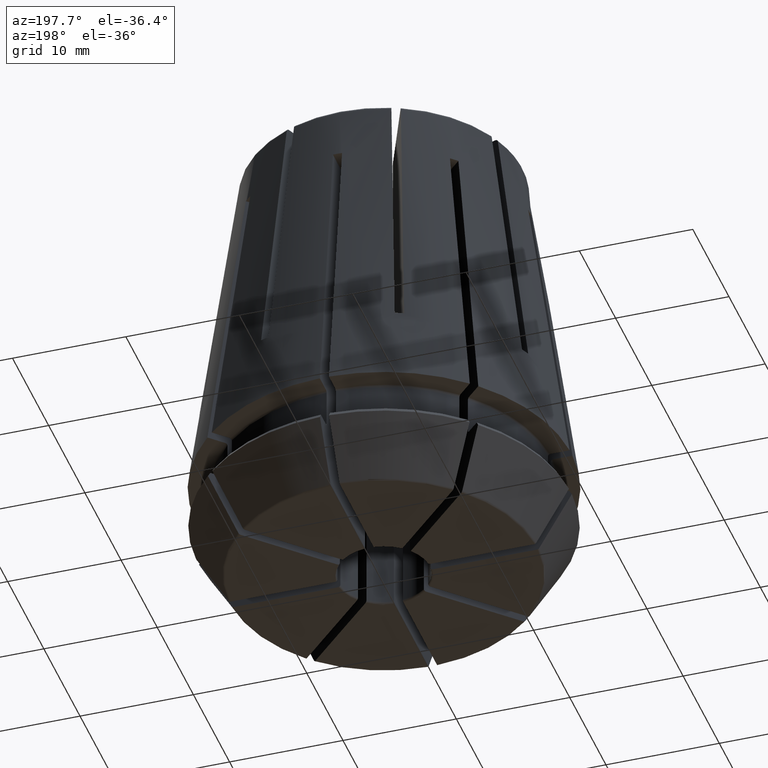
[diagram: clean part render]
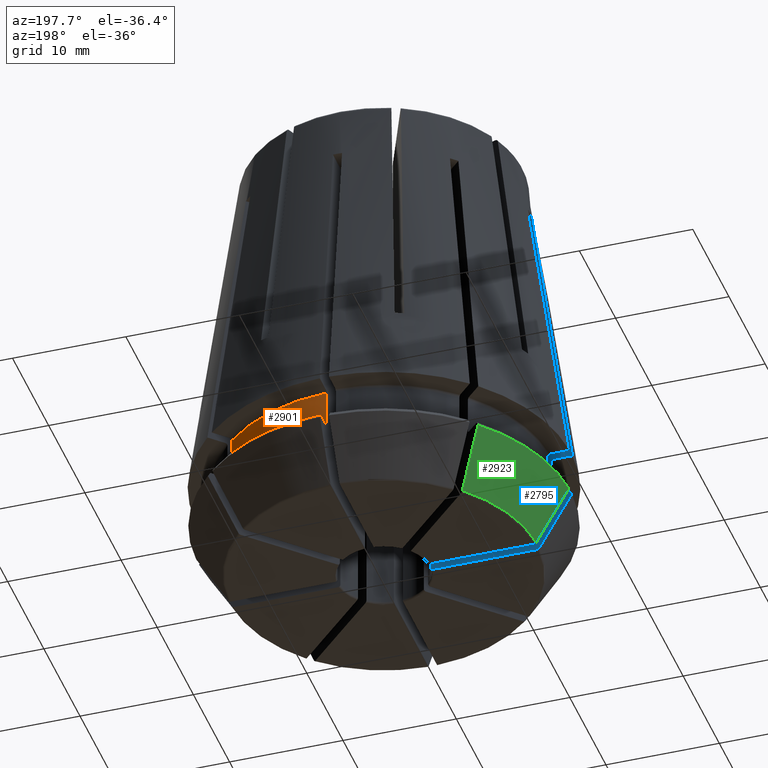
[diagram: same view with three faces highlighted in distinct colors, each labeled with its STEP entity id]
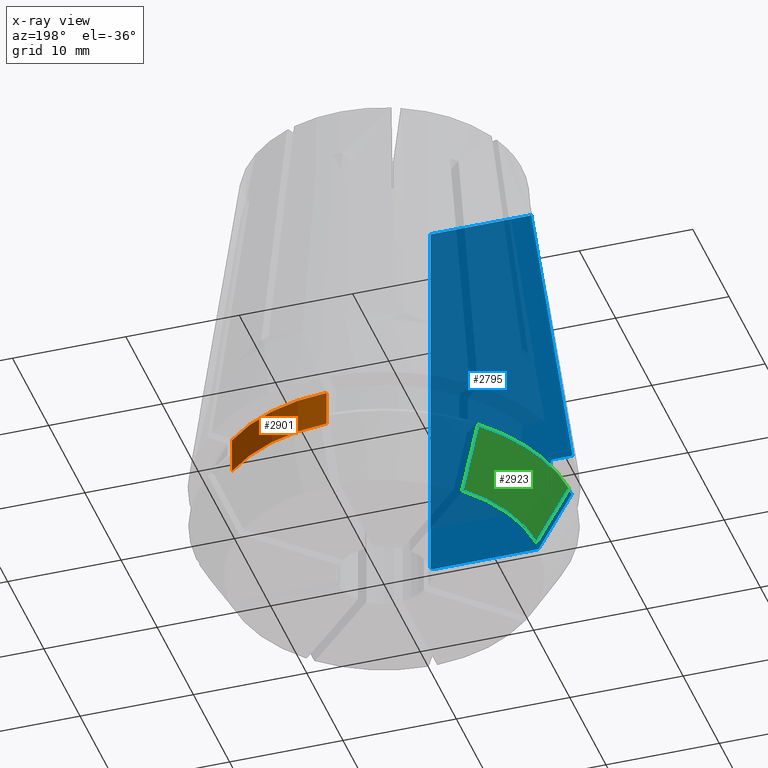
[diagram: x-ray of the same camera — body ghosted, the three highlighted faces saturated]
A machine part, auxiliary view with three faces highlighted in distinct colors.
The next image is the same camera in x-ray (body ghosted, the three faces saturated) — at least one of them is partly hidden behind the body in this view.
Their STEP definitions:

[orange] entity #2901 — the highlighted cylindrical surface (partial cylindrical patch) has radius 14.6 mm, axis along (0, 0, -1).
#22=CYLINDRICAL_SURFACE('',#3228,14.6);
#257=LINE('',#4324,#417);
#368=LINE('',#5317,#528);
#417=VECTOR('',#3356,1000.);
#528=VECTOR('',#3987,1000.);
#1182=ORIENTED_EDGE('',*,*,#1529,.T.);
#1183=ORIENTED_EDGE('',*,*,#1875,.F.);
#1184=ORIENTED_EDGE('',*,*,#1876,.F.);
#1185=ORIENTED_EDGE('',*,*,#1686,.F.);
#1529=EDGE_CURVE('',#1979,#1978,#257,.T.);
#1686=EDGE_CURVE('',#1979,#2101,#2284,.T.);
#1875=EDGE_CURVE('',#2207,#1978,#2373,.T.);
#1876=EDGE_CURVE('',#2101,#2207,#368,.T.);
#1978=VERTEX_POINT('',#4323);
#1979=VERTEX_POINT('',#4325);
#2101=VERTEX_POINT('',#4791);
#2207=VERTEX_POINT('',#5314);
#2284=CIRCLE('',#3059,14.6);
#2373=CIRCLE('',#3227,14.6);
#2509=EDGE_LOOP('',(#1182,#1183,#1184,#1185));
#2665=FACE_BOUND('',#2509,.T.);
#2901=ADVANCED_FACE('',(#2665),#22,.T.);
#3059=AXIS2_PLACEMENT_3D('',#4790,#3592,#3593);
#3227=AXIS2_PLACEMENT_3D('',#5315,#3983,#3984);
#3228=AXIS2_PLACEMENT_3D('',#5316,#3985,#3986);
#3356=DIRECTION('',(0.,0.,1.));
#3592=DIRECTION('',(0.,0.,-1.));
#3593=DIRECTION('',(-1.,0.,0.));
#3983=DIRECTION('',(0.,0.,1.));
#3984=DIRECTION('',(1.,0.,0.));
#3985=DIRECTION('',(0.,0.,-1.));
#3986=DIRECTION('',(1.,0.,0.));
#3987=DIRECTION('',(0.,0.,1.));
#4323=CARTESIAN_POINT('',(0.399999999999997,14.594519519326,-0.199999999999896));
#4324=CARTESIAN_POINT('',(0.399999999999996,14.5945195193264,60.));
#4325=CARTESIAN_POINT('',(0.399999999999997,14.5945195193264,-3.400000000001));
#4790=CARTESIAN_POINT('',(0.,0.,-3.4));
#4791=CARTESIAN_POINT('',(10.0370410078005,10.6027264327498,-3.4));
#5314=CARTESIAN_POINT('',(10.0370410078002,10.6027264327495,-0.199999999999896));
#5315=CARTESIAN_POINT('',(0.,0.,-0.2));
#5316=CARTESIAN_POINT('',(0.,0.,60.));
#5317=CARTESIAN_POINT('',(10.0370410078005,10.6027264327498,60.));

[blue] entity #2795 — the highlighted planar face has unit normal (0, 1, 0).
#147=B_SPLINE_CURVE_WITH_KNOTS('',3,(#4571,#4572,#4573,#4574),
 .UNSPECIFIED.,.F.,.F.,(4,4),(7.99668010393891E-18,0.000313176327419352),
 .UNSPECIFIED.);
#148=B_SPLINE_CURVE_WITH_KNOTS('',3,(#4578,#4579,#4580,#4581),
 .UNSPECIFIED.,.F.,.F.,(4,4),(2.77436576750366E-15,0.00026083565876532),
 .UNSPECIFIED.);
#149=B_SPLINE_CURVE_WITH_KNOTS('',3,(#4589,#4590,#4591,#4592),
 .UNSPECIFIED.,.F.,.F.,(4,4),(2.11038219202008E-17,0.000312489649441709),
 .UNSPECIFIED.);
#150=B_SPLINE_CURVE_WITH_KNOTS('',3,(#4596,#4597,#4598,#4599),
 .UNSPECIFIED.,.F.,.F.,(4,4),(2.00577401909818E-18,0.000312489568508776),
 .UNSPECIFIED.);
#151=B_SPLINE_CURVE_WITH_KNOTS('',3,(#4603,#4604,#4605,#4606,#4607,#4608,
#4609),.UNSPECIFIED.,.F.,.F.,(4,3,4),(0.0202055224865555,0.0233448169697457,
0.046360247754037),.UNSPECIFIED.);
#294=LINE('',#4566,#454);
#295=LINE('',#4569,#455);
#296=LINE('',#4576,#456);
#297=LINE('',#4585,#457);
#298=LINE('',#4587,#458);
#299=LINE('',#4594,#459);
#300=LINE('',#4601,#460);
#454=VECTOR('',#3427,1000.);
#455=VECTOR('',#3428,1000.);
#456=VECTOR('',#3429,1000.);
#457=VECTOR('',#3432,1000.);
#458=VECTOR('',#3433,1000.);
#459=VECTOR('',#3434,1000.);
#460=VECTOR('',#3435,1000.);
#701=ORIENTED_EDGE('',*,*,#1602,.T.);
#702=ORIENTED_EDGE('',*,*,#1603,.F.);
#703=ORIENTED_EDGE('',*,*,#1604,.F.);
#704=ORIENTED_EDGE('',*,*,#1605,.F.);
#705=ORIENTED_EDGE('',*,*,#1606,.F.);
#706=ORIENTED_EDGE('',*,*,#1607,.F.);
#707=ORIENTED_EDGE('',*,*,#1608,.F.);
#708=ORIENTED_EDGE('',*,*,#1609,.T.);
#709=ORIENTED_EDGE('',*,*,#1610,.T.);
#710=ORIENTED_EDGE('',*,*,#1611,.T.);
#711=ORIENTED_EDGE('',*,*,#1612,.T.);
#712=ORIENTED_EDGE('',*,*,#1613,.T.);
#713=ORIENTED_EDGE('',*,*,#1614,.F.);
#1602=EDGE_CURVE('',#2047,#2048,#294,.T.);
#1603=EDGE_CURVE('',#2049,#2048,#295,.T.);
#1604=EDGE_CURVE('',#2050,#2049,#147,.T.);
#1605=EDGE_CURVE('',#2051,#2050,#296,.T.);
#1606=EDGE_CURVE('',#2052,#2051,#148,.T.);
#1607=EDGE_CURVE('',#2053,#2052,#2237,.T.);
#1608=EDGE_CURVE('',#2054,#2053,#297,.T.);
#1609=EDGE_CURVE('',#2054,#2055,#298,.T.);
#1610=EDGE_CURVE('',#2055,#2056,#149,.T.);
#1611=EDGE_CURVE('',#2056,#2057,#299,.T.);
#1612=EDGE_CURVE('',#2057,#2058,#150,.T.);
#1613=EDGE_CURVE('',#2058,#2059,#300,.T.);
#1614=EDGE_CURVE('',#2047,#2059,#151,.T.);
#2047=VERTEX_POINT('',#4567);
#2048=VERTEX_POINT('',#4568);
#2049=VERTEX_POINT('',#4570);
#2050=VERTEX_POINT('',#4575);
#2051=VERTEX_POINT('',#4577);
#2052=VERTEX_POINT('',#4582);
#2053=VERTEX_POINT('',#4584);
#2054=VERTEX_POINT('',#4586);
#2055=VERTEX_POINT('',#4588);
#2056=VERTEX_POINT('',#4593);
#2057=VERTEX_POINT('',#4595);
#2058=VERTEX_POINT('',#4600);
#2059=VERTEX_POINT('',#4602);
#2237=CIRCLE('',#2986,94735.385759616);
#2403=EDGE_LOOP('',(#701,#702,#703,#704,#705,#706,#707,#708,#709,#710,#711,
#712,#713));
#2559=FACE_BOUND('',#2403,.T.);
#2715=PLANE('',#2985);
#2795=ADVANCED_FACE('',(#2559),#2715,.T.);
#2985=AXIS2_PLACEMENT_3D('',#4565,#3425,#3426);
#2986=AXIS2_PLACEMENT_3D('',#4583,#3430,#3431);
#3425=DIRECTION('',(0.,1.,0.));
#3426=DIRECTION('',(1.,0.,0.));
#3427=DIRECTION('',(1.,0.,0.));
#3428=DIRECTION('',(0.,0.,1.));
#3429=DIRECTION('',(1.,0.,0.));
#3430=DIRECTION('',(-1.08957204212176E-12,-1.,-6.29290299322622E-13));
#3431=DIRECTION('',(-0.865962936576983,1.25824223146852E-12,-0.500108180771889));
#3432=DIRECTION('',(-0.50011251339731,0.,-0.865960434398377));
#3433=DIRECTION('',(1.,0.,0.));
#3434=DIRECTION('',(0.,0.,1.));
#3435=DIRECTION('',(-1.,0.,0.));
#4565=CARTESIAN_POINT('',(0.,-0.4,-47.9892454688453));
#4566=CARTESIAN_POINT('',(12.859992381208,-0.4,25.9));
#4567=CARTESIAN_POINT('',(-12.8537700323574,-0.4,25.9));
#4568=CARTESIAN_POINT('',(-3.97994974842647,-0.4,25.9));
#4569=CARTESIAN_POINT('',(-3.97994974842647,-0.4,60.));
#4570=CARTESIAN_POINT('',(-3.97994974842612,-0.4,-8.90000000000008));
#4571=CARTESIAN_POINT('',(-4.18090899207336,-0.4,-9.1));
#4572=CARTESIAN_POINT('',(-4.07501616174379,-0.4,-9.09999999999999));
#4573=CARTESIAN_POINT('',(-3.97994974842584,-0.4,-9.00590696409987));
#4574=CARTESIAN_POINT('',(-3.97994974842576,-0.4,-8.90000000000016));
#4575=CARTESIAN_POINT('',(-4.18090899207337,-0.4,-9.1));
#4576=CARTESIAN_POINT('',(0.,-0.4,-9.1));
#4577=CARTESIAN_POINT('',(-13.3492444482022,-0.4,-9.1));
#4578=CARTESIAN_POINT('',(-13.5658464218755,-0.4,-8.97500000000004));
#4579=CARTESIAN_POINT('',(-13.5217332863925,-0.4,-9.0513729993067));
#4580=CARTESIAN_POINT('',(-13.437441077681,-0.4,-9.10000000000002));
#4581=CARTESIAN_POINT('',(-13.3492444482022,-0.4,-9.1));
#4582=CARTESIAN_POINT('',(-13.5658464218795,-0.4,-8.97499999999977));
#4583=CARTESIAN_POINT('',(82020.8913049918,-0.400000119200063,47373.9454977503));
#4584=CARTESIAN_POINT('',(-16.4415451585532,-0.4,-3.99592921435211));
#4585=CARTESIAN_POINT('',(-16.3272159428919,-0.4,-3.79796460717606));
#4586=CARTESIAN_POINT('',(-16.2128867272304,-0.4,-3.6));
#4587=CARTESIAN_POINT('',(16.5690598923242,-0.4,-3.6));
#4588=CARTESIAN_POINT('',(-14.7945936071255,-0.4,-3.6));
#4589=CARTESIAN_POINT('',(-14.7945936071255,-0.4,-3.6));
#4590=CARTESIAN_POINT('',(-14.6889308738259,-0.4,-3.59999999999998));
#4591=CARTESIAN_POINT('',(-14.5945195193256,-0.4,-3.5056638317062));
#4592=CARTESIAN_POINT('',(-14.5945195193255,-0.4,-3.40000000000021));
#4593=CARTESIAN_POINT('',(-14.594519519326,-0.4,-3.4000000000001));
#4594=CARTESIAN_POINT('',(-14.5945195193264,-0.4,60.));
#4595=CARTESIAN_POINT('',(-14.5945195193264,-0.4,-0.2));
#4596=CARTESIAN_POINT('',(-14.5945195193264,-0.4,-0.2));
#4597=CARTESIAN_POINT('',(-14.5945195193264,-0.4,-0.094336848743845));
#4598=CARTESIAN_POINT('',(-14.6889315579968,-0.4,-1.02320408360206E-12));
#4599=CARTESIAN_POINT('',(-14.7945936071218,-0.4,9.61874670582086E-13));
#4600=CARTESIAN_POINT('',(-14.7945936071238,-0.4,-1.19589433366107E-18));
#4601=CARTESIAN_POINT('',(14.6,-0.4,1.85288457211878E-19));
#4602=CARTESIAN_POINT('',(-16.4951508025844,-0.4,0.));
#4603=CARTESIAN_POINT('',(-12.8537700323574,-0.4,25.9));
#4604=CARTESIAN_POINT('',(-12.9994742820282,-0.4,24.8637620232766));
#4605=CARTESIAN_POINT('',(-13.1451761838456,-0.4,23.8275237164219));
#4606=CARTESIAN_POINT('',(-13.2908759620741,-0.4,22.7912851109839));
#4607=CARTESIAN_POINT('',(-14.3590596507436,-0.4,15.1942030196));
#4608=CARTESIAN_POINT('',(-15.427133378476,-0.4,7.59710546706872));
#4609=CARTESIAN_POINT('',(-16.4951508025844,-0.4,-3.47145982650402E-15));

[green] entity #2923 — the highlighted conical surface has half-angle 30 deg.
#45=CONICAL_SURFACE('',#3257,16.4464101615138,0.523598775598299);
#1423=ORIENTED_EDGE('',*,*,#1907,.F.);
#1424=ORIENTED_EDGE('',*,*,#1834,.F.);
#1425=ORIENTED_EDGE('',*,*,#1596,.F.);
#1426=ORIENTED_EDGE('',*,*,#1641,.F.);
#1596=EDGE_CURVE('',#2041,#2042,#2236,.T.);
#1641=EDGE_CURVE('',#2081,#2041,#2247,.T.);
#1834=EDGE_CURVE('',#2042,#2193,#2348,.T.);
#1907=EDGE_CURVE('',#2193,#2081,#2381,.T.);
#2041=VERTEX_POINT('',#4547);
#2042=VERTEX_POINT('',#4549);
#2081=VERTEX_POINT('',#4690);
#2193=VERTEX_POINT('',#5201);
#2236=CIRCLE('',#2984,94735.385759616);
#2247=CIRCLE('',#3002,16.4464101615138);
#2348=CIRCLE('',#3171,13.5717423031058);
#2381=CIRCLE('',#3258,94735.3632309778);
#2533=EDGE_LOOP('',(#1423,#1424,#1425,#1426));
#2689=FACE_BOUND('',#2533,.T.);
#2923=ADVANCED_FACE('',(#2689),#45,.T.);
#2984=AXIS2_PLACEMENT_3D('',#4548,#3420,#3421);
#3002=AXIS2_PLACEMENT_3D('',#4692,#3475,#3476);
#3171=AXIS2_PLACEMENT_3D('',#5202,#3864,#3865);
#3257=AXIS2_PLACEMENT_3D('',#5414,#4057,#4058);
#3258=AXIS2_PLACEMENT_3D('',#5415,#4059,#4060);
#3420=DIRECTION('',(1.08957204212176E-12,-1.,6.29290299322622E-13));
#3421=DIRECTION('',(-0.865962936576983,-1.25824223146852E-12,-0.500108180771889));
#3475=DIRECTION('',(0.,0.,1.));
#3476=DIRECTION('',(1.,0.,0.));
#3864=DIRECTION('',(0.,0.,-1.));
#3865=DIRECTION('',(-1.,0.,0.));
#4057=DIRECTION('',(0.,0.,1.));
#4058=DIRECTION('',(1.,0.,0.));
#4059=DIRECTION('',(0.707106781191121,0.707106781181974,2.74382909370636E-12));
#4060=DIRECTION('',(-0.612306800430569,0.61230680044043,-0.500160738444035));
#4547=CARTESIAN_POINT('',(-16.4415451585532,0.4,-3.99592921435211));
#4548=CARTESIAN_POINT('',(82020.8913049918,0.400000119200063,47373.9454977503));
#4549=CARTESIAN_POINT('',(-13.5658464218795,0.4,-8.97499999999977));
#4690=CARTESIAN_POINT('',(-11.9087707872724,11.3430853623232,-3.99592921435211));
#4692=CARTESIAN_POINT('',(0.,0.,-3.99592921435211));
#5201=CARTESIAN_POINT('',(-9.87534470991825,9.30965928496749,-8.9749999999962));
#5202=CARTESIAN_POINT('',(0.,0.,-8.975));
#5414=CARTESIAN_POINT('',(0.,0.,-3.99592921435211));
#5415=CARTESIAN_POINT('',(57997.2318028779,-57997.797489237,47373.9342303698));